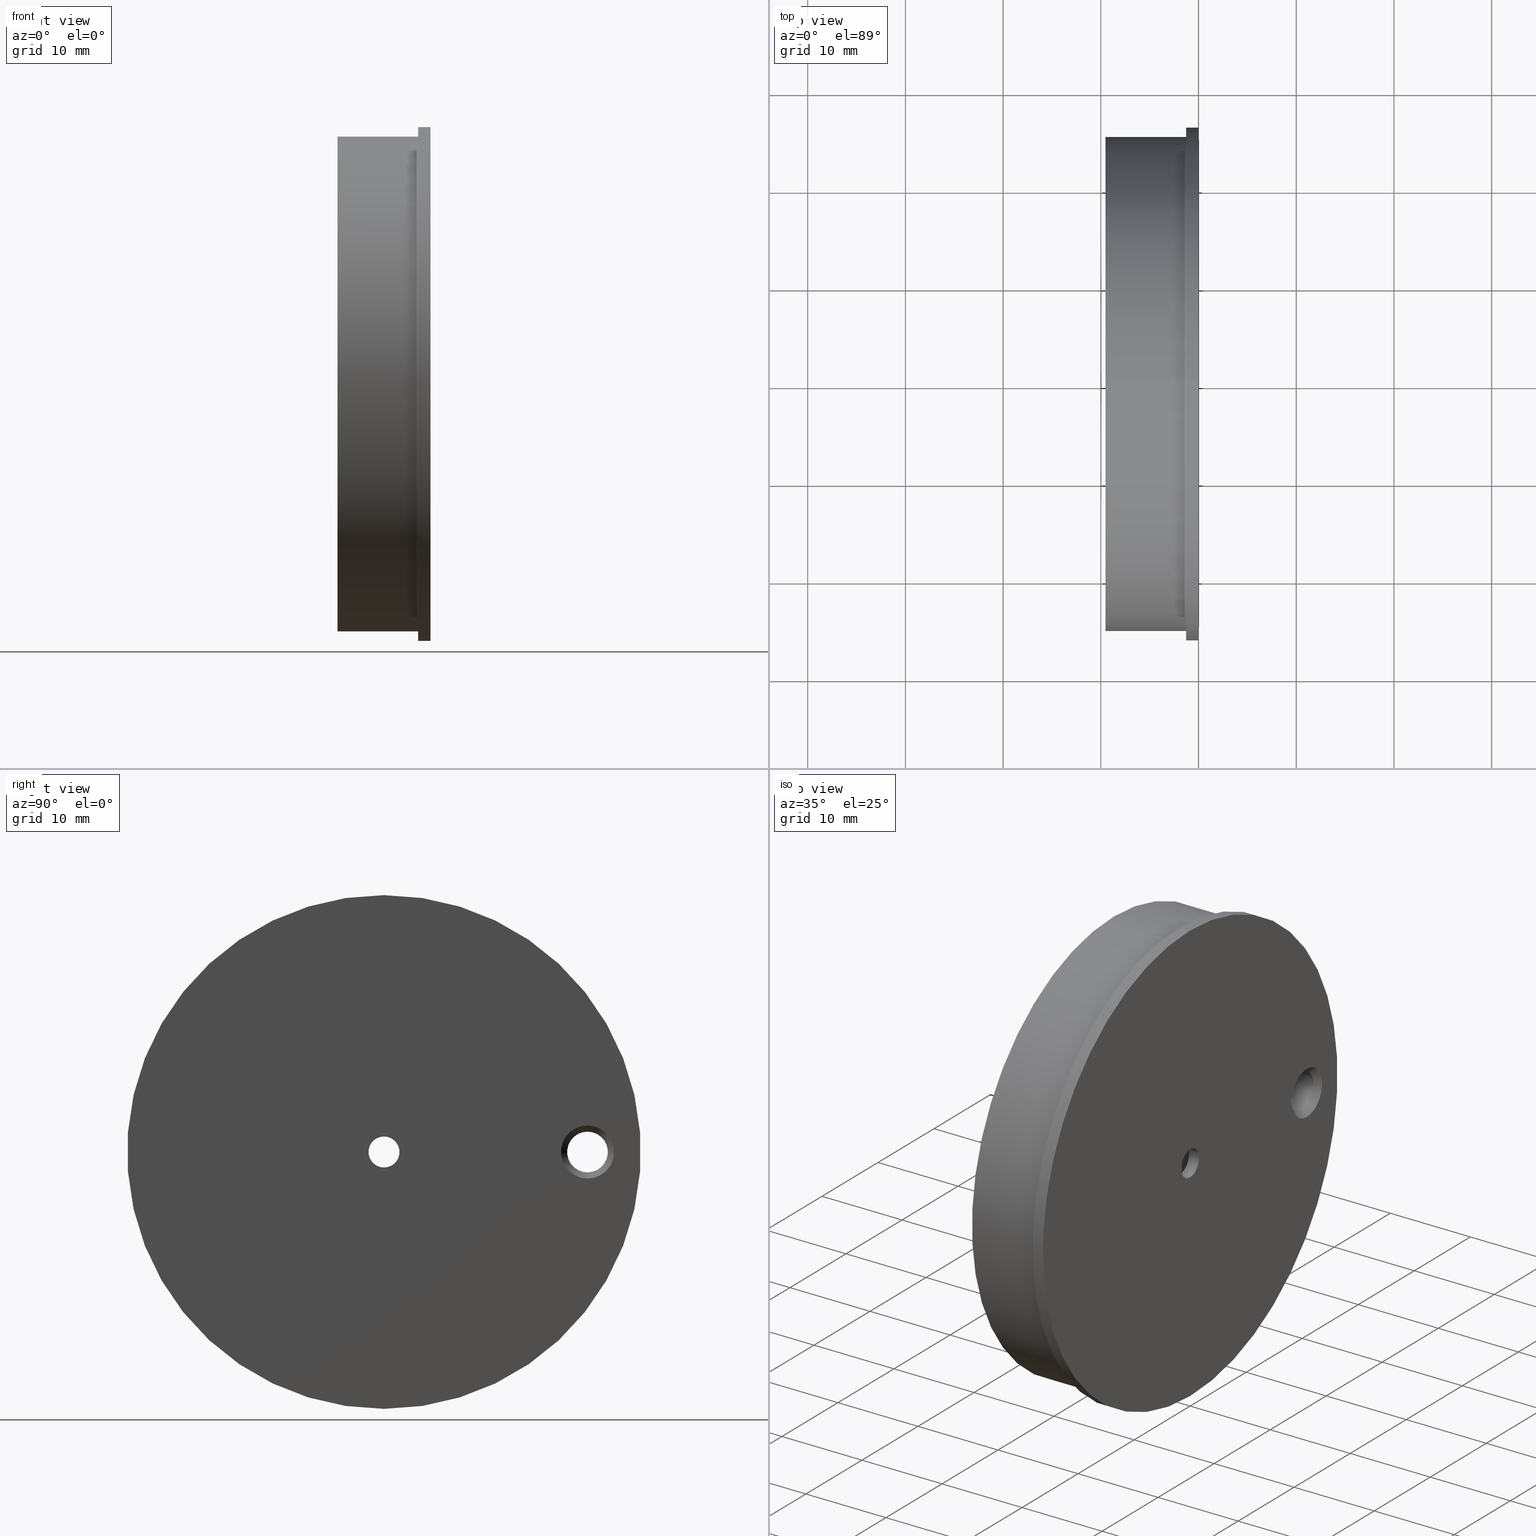
[diagram: canonical four-view strip — front | top / right | iso, engineering-drawing reading convention]
A machine part, canonical four-view strip (front | top / right | iso — engineering-drawing reading convention). The complete STEP part file that produces these views, byte-faithful:
ISO-10303-21;
HEADER;
FILE_DESCRIPTION (( 'STEP AP214' ),
    '1' );
FILE_NAME ('D1300072-v1 aLIGO Pcal Tooling, Periscope Target Disc.STEP',
    '2013-02-11T21:25:10',
    ( 'ligo' ),
    ( 'Microsoft' ),
    'SwSTEP 2.0',
    'SolidWorks 2012',
    '' );
FILE_SCHEMA (( 'AUTOMOTIVE_DESIGN' ));
ENDSEC;

DATA;
#1 = DIRECTION ( 'NONE',  ( 0.0000000000000000000, 0.0000000000000000000, -1.000000000000000000 ) ) ;
#2 = DIRECTION ( 'NONE',  ( 1.000000000000000000, -0.0000000000000000000, -0.0000000000000000000 ) ) ;
#3 =( NAMED_UNIT ( * ) PLANE_ANGLE_UNIT ( ) SI_UNIT ( $, .RADIAN. ) );
#4 = DIRECTION ( 'NONE',  ( 0.0000000000000000000, 0.0000000000000000000, -1.000000000000000000 ) ) ;
#5 = DIRECTION ( 'NONE',  ( 0.0000000000000000000, 1.000000000000000000, -1.224646799147353200E-016 ) ) ;
#6 = DIRECTION ( 'NONE',  ( -1.000000000000000000, -0.0000000000000000000, -0.0000000000000000000 ) ) ;
#7 = DIRECTION ( 'NONE',  ( 0.0000000000000000000, 0.0000000000000000000, -1.000000000000000000 ) ) ;
#8 = CARTESIAN_POINT ( 'NONE',  ( -0.3750000000000001100, 0.0000000000000000000, 0.0000000000000000000 ) ) ;
#9 = DIRECTION ( 'NONE',  ( 0.0000000000000000000, 0.0000000000000000000, -1.000000000000000000 ) ) ;
#10 = CARTESIAN_POINT ( 'NONE',  ( -0.3750000000000001100, 0.0000000000000000000, 0.0000000000000000000 ) ) ;
#11 = DIRECTION ( 'NONE',  ( 0.0000000000000000000, 0.0000000000000000000, 1.000000000000000000 ) ) ;
#12 = CARTESIAN_POINT ( 'NONE',  ( -0.1950000000000000100, 0.0000000000000000000, 0.0000000000000000000 ) ) ;
#13 = DIRECTION ( 'NONE',  ( -1.000000000000000000, -0.0000000000000000000, -0.0000000000000000000 ) ) ;
#14 =( NAMED_UNIT ( * ) PLANE_ANGLE_UNIT ( ) SI_UNIT ( $, .RADIAN. ) );
#15 = DIRECTION ( 'NONE',  ( -1.000000000000000000, -0.0000000000000000000, -0.0000000000000000000 ) ) ;
#16 = DIRECTION ( 'NONE',  ( 0.0000000000000000000, 0.0000000000000000000, -1.000000000000000000 ) ) ;
#17 = CARTESIAN_POINT ( 'NONE',  ( -0.09999999999999997800, 2.449293598294705900E-017, 0.1999999999999999600 ) ) ;
#18 = CARTESIAN_POINT ( 'NONE',  ( -0.09999999999999997800, 0.0000000000000000000, -0.1999999999999999600 ) ) ;
#19 = CARTESIAN_POINT ( 'NONE',  ( 0.0000000000000000000, 1.267509437117510400E-016, 1.034999999999999900 ) ) ;
#20 =( LENGTH_UNIT ( ) NAMED_UNIT ( * ) SI_UNIT ( $, .METRE. ) );
#21 = DIRECTION ( 'NONE',  ( 1.000000000000000000, -0.0000000000000000000, -0.0000000000000000000 ) ) ;
#22 = DIRECTION ( 'NONE',  ( 0.7071067811865475700, 0.0000000000000000000, -0.7071067811865474600 ) ) ;
#23 = DIRECTION ( 'NONE',  ( 0.0000000000000000000, 0.0000000000000000000, -1.000000000000000000 ) ) ;
#24 = CARTESIAN_POINT ( 'NONE',  ( -0.04999999999999988500, 0.0000000000000000000, 0.0000000000000000000 ) ) ;
#25 = CARTESIAN_POINT ( 'NONE',  ( 0.0000000000000000000, 0.0000000000000000000, 0.0000000000000000000 ) ) ;
#26 = CARTESIAN_POINT ( 'NONE',  ( -0.04999999999999996100, 0.0000000000000000000, 0.0000000000000000000 ) ) ;
#27 = CARTESIAN_POINT ( 'NONE',  ( 0.0000000000000000000, 0.0000000000000000000, -0.6770000000000000500 ) ) ;
#28 = CARTESIAN_POINT ( 'NONE',  ( -0.3750000000000001100, 0.8199999999999999500, -0.1069999999999999800 ) ) ;
#29 = DIRECTION ( 'NONE',  ( 0.0000000000000000000, 0.0000000000000000000, -1.000000000000000000 ) ) ;
#30 = CARTESIAN_POINT ( 'NONE',  ( -0.04999999999999996100, 0.0000000000000000000, 0.0000000000000000000 ) ) ;
#31 = CARTESIAN_POINT ( 'NONE',  ( -0.1950000000000000300, 0.0000000000000000000, 0.0000000000000000000 ) ) ;
#32 = DIRECTION ( 'NONE',  ( 1.000000000000000000, -0.0000000000000000000, -0.0000000000000000000 ) ) ;
#33 = CARTESIAN_POINT ( 'NONE',  ( -0.05000000000000006500, 0.0000000000000000000, 0.0000000000000000000 ) ) ;
#34 = CARTESIAN_POINT ( 'NONE',  ( -0.1950000000000000100, 0.0000000000000000000, 0.0000000000000000000 ) ) ;
#35 = CARTESIAN_POINT ( 'NONE',  ( -0.1950000000000000300, 0.0000000000000000000, 0.0000000000000000000 ) ) ;
#36 = DIRECTION ( 'NONE',  ( -0.0000000000000000000, -1.000000000000000000, -0.0000000000000000000 ) ) ;
#37 = DIRECTION ( 'NONE',  ( 0.0000000000000000000, 0.0000000000000000000, -1.000000000000000000 ) ) ;
#38 =( NAMED_UNIT ( * ) PLANE_ANGLE_UNIT ( ) SI_UNIT ( $, .RADIAN. ) );
#39 = DIRECTION ( 'NONE',  ( 0.0000000000000000000, 0.0000000000000000000, -1.000000000000000000 ) ) ;
#40 = DIRECTION ( 'NONE',  ( 0.0000000000000000000, 0.0000000000000000000, -1.000000000000000000 ) ) ;
#41 = DIRECTION ( 'NONE',  ( 0.0000000000000000000, 0.0000000000000000000, 1.000000000000000000 ) ) ;
#42 = CARTESIAN_POINT ( 'NONE',  ( -0.02500000000000007400, 0.8199999999999999500, 0.08199999999999997600 ) ) ;
#43 = CARTESIAN_POINT ( 'NONE',  ( -0.05000000000000006500, 0.0000000000000000000, 0.0000000000000000000 ) ) ;
#44 = CARTESIAN_POINT ( 'NONE',  ( -0.3500000000000000300, 0.8199999999999999500, 0.0000000000000000000 ) ) ;
#45 = DIRECTION ( 'NONE',  ( 0.0000000000000000000, 0.0000000000000000000, -1.000000000000000000 ) ) ;
#46 = DIRECTION ( 'NONE',  ( 1.000000000000000000, -0.0000000000000000000, -0.0000000000000000000 ) ) ;
#47 = CARTESIAN_POINT ( 'NONE',  ( 0.0000000000000000000, 7.654042494670956000E-018, 0.06249999999999997900 ) ) ;
#48 = CARTESIAN_POINT ( 'NONE',  ( -0.3750000000000001100, 0.8199999999999999500, 0.0000000000000000000 ) ) ;
#49 = CARTESIAN_POINT ( 'NONE',  ( 0.0000000000000000000, 0.0000000000000000000, 0.0000000000000000000 ) ) ;
#50 = DIRECTION ( 'NONE',  ( 1.000000000000000000, -0.0000000000000000000, -0.0000000000000000000 ) ) ;
#51 = DIRECTION ( 'NONE',  ( 0.0000000000000000000, 0.0000000000000000000, -1.000000000000000000 ) ) ;
#52 = CARTESIAN_POINT ( 'NONE',  ( 0.0000000000000000000, 0.0000000000000000000, -0.06249999999999997900 ) ) ;
#53 = CARTESIAN_POINT ( 'NONE',  ( -0.02500000000000007400, 0.8199999999999999500, -0.08199999999999997600 ) ) ;
#54 = DIRECTION ( 'NONE',  ( 0.0000000000000000000, 0.0000000000000000000, -1.000000000000000000 ) ) ;
#55 = DIRECTION ( 'NONE',  ( 0.0000000000000000000, 0.0000000000000000000, 1.000000000000000000 ) ) ;
#56 = DIRECTION ( 'NONE',  ( 0.0000000000000000000, 0.0000000000000000000, -1.000000000000000000 ) ) ;
#57 = PLANE ( 'NONE',  #529 ) ;
#58 = DIRECTION ( 'NONE',  ( -1.000000000000000000, -0.0000000000000000000, -0.0000000000000000000 ) ) ;
#59 = DIRECTION ( 'NONE',  ( -1.000000000000000000, -0.0000000000000000000, -0.0000000000000000000 ) ) ;
#60 = CARTESIAN_POINT ( 'NONE',  ( -6.829619984160658000E-017, 0.8199999999999999500, 0.0000000000000000000 ) ) ;
#61 =( LENGTH_UNIT ( ) NAMED_UNIT ( * ) SI_UNIT ( $, .METRE. ) );
#62 = DIRECTION ( 'NONE',  ( 0.0000000000000000000, 0.0000000000000000000, 1.000000000000000000 ) ) ;
#63 = APPLICATION_PROTOCOL_DEFINITION ( 'draft international standard', 'automotive_design', 1998, #130 ) ;
#64 = DIRECTION ( 'NONE',  ( -0.0000000000000000000, -1.000000000000000000, -0.0000000000000000000 ) ) ;
#65 = DIRECTION ( 'NONE',  ( -1.000000000000000000, -0.0000000000000000000, -0.0000000000000000000 ) ) ;
#66 = DIRECTION ( 'NONE',  ( 0.0000000000000000000, 0.0000000000000000000, -1.000000000000000000 ) ) ;
#67 = DIRECTION ( 'NONE',  ( -1.000000000000000000, -0.0000000000000000000, -0.0000000000000000000 ) ) ;
#68 = DIRECTION ( 'NONE',  ( 1.000000000000000000, -0.0000000000000000000, -0.0000000000000000000 ) ) ;
#69 = DIRECTION ( 'NONE',  ( 0.0000000000000000000, 0.0000000000000000000, -1.000000000000000000 ) ) ;
#70 = DIRECTION ( 'NONE',  ( 1.000000000000000000, -0.0000000000000000000, -0.0000000000000000000 ) ) ;
#71 = FILL_AREA_STYLE ('',( #113 ) ) ;
#72 = DIRECTION ( 'NONE',  ( 0.0000000000000000000, 0.0000000000000000000, 1.000000000000000000 ) ) ;
#73 = DIRECTION ( 'NONE',  ( 0.0000000000000000000, 0.0000000000000000000, -1.000000000000000000 ) ) ;
#74 = DIRECTION ( 'NONE',  ( -1.000000000000000000, -0.0000000000000000000, -0.0000000000000000000 ) ) ;
#75 = DIRECTION ( 'NONE',  ( 1.000000000000000000, -0.0000000000000000000, -0.0000000000000000000 ) ) ;
#76 = CARTESIAN_POINT ( 'NONE',  ( -0.09999999999999997800, 0.0000000000000000000, 0.0000000000000000000 ) ) ;
#77 = DIRECTION ( 'NONE',  ( -1.000000000000000000, -0.0000000000000000000, -0.0000000000000000000 ) ) ;
#78 = DIRECTION ( 'NONE',  ( 1.000000000000000000, -0.0000000000000000000, -0.0000000000000000000 ) ) ;
#79 = APPLICATION_PROTOCOL_DEFINITION ( 'draft international standard', 'automotive_design', 1998, #165 ) ;
#80 = DIRECTION ( 'NONE',  ( 1.000000000000000000, -0.0000000000000000000, -0.0000000000000000000 ) ) ;
#81 = CARTESIAN_POINT ( 'NONE',  ( 0.0000000000000000000, 0.0000000000000000000, 0.0000000000000000000 ) ) ;
#82 = DIRECTION ( 'NONE',  ( 1.000000000000000000, -0.0000000000000000000, -0.0000000000000000000 ) ) ;
#83 = DIRECTION ( 'NONE',  ( 0.0000000000000000000, 0.0000000000000000000, -1.000000000000000000 ) ) ;
#84 = DIRECTION ( 'NONE',  ( 0.0000000000000000000, 0.0000000000000000000, -1.000000000000000000 ) ) ;
#85 = SURFACE_STYLE_USAGE ( .BOTH. , #102 ) ;
#86 = DIRECTION ( 'NONE',  ( 0.0000000000000000000, 0.0000000000000000000, 1.000000000000000000 ) ) ;
#87 = DIRECTION ( 'NONE',  ( 1.000000000000000000, -0.0000000000000000000, -0.0000000000000000000 ) ) ;
#88 = CARTESIAN_POINT ( 'NONE',  ( -0.02500000000000007400, 0.8199999999999999500, 0.0000000000000000000 ) ) ;
#89 = CARTESIAN_POINT ( 'NONE',  ( 0.0000000000000000000, 8.290858830227582600E-017, 0.6770000000000000500 ) ) ;
#90 = CARTESIAN_POINT ( 'NONE',  ( -0.3750000000000000600, 0.9970000000000000000, 0.0000000000000000000 ) ) ;
#91 = PRODUCT_CONTEXT ( 'NONE', #130, 'mechanical' ) ;
#92 = DIRECTION ( 'NONE',  ( 1.000000000000000000, -0.0000000000000000000, -0.0000000000000000000 ) ) ;
#93 = SURFACE_STYLE_USAGE ( .BOTH. , #168 ) ;
#94 = DIRECTION ( 'NONE',  ( 0.0000000000000000000, 1.224646799147353500E-016, 1.000000000000000000 ) ) ;
#95 = DIRECTION ( 'NONE',  ( 0.0000000000000000000, 0.0000000000000000000, 1.000000000000000000 ) ) ;
#96 = DIRECTION ( 'NONE',  ( 1.000000000000000000, -0.0000000000000000000, -0.0000000000000000000 ) ) ;
#97 = CARTESIAN_POINT ( 'NONE',  ( 0.0000000000000000000, 0.0000000000000000000, 0.0000000000000000000 ) ) ;
#98 = CARTESIAN_POINT ( 'NONE',  ( -0.3750000000000001100, 0.8199999999999999500, 0.0000000000000000000 ) ) ;
#99 = DIRECTION ( 'NONE',  ( 1.000000000000000000, -0.0000000000000000000, -0.0000000000000000000 ) ) ;
#100 = DIRECTION ( 'NONE',  ( -1.000000000000000000, 0.0000000000000000000, 0.0000000000000000000 ) ) ;
#101 = DIRECTION ( 'NONE',  ( 1.000000000000000000, -0.0000000000000000000, -0.0000000000000000000 ) ) ;
#102 = SURFACE_SIDE_STYLE ('',( #258 ) ) ;
#103 = CARTESIAN_POINT ( 'NONE',  ( -0.02500000000000007400, 0.8199999999999999500, 0.0000000000000000000 ) ) ;
#104 = DIRECTION ( 'NONE',  ( 0.0000000000000000000, 0.0000000000000000000, -1.000000000000000000 ) ) ;
#105 = CARTESIAN_POINT ( 'NONE',  ( -0.3749999999999999400, 0.0000000000000000000, 0.0000000000000000000 ) ) ;
#106 =( NAMED_UNIT ( * ) SI_UNIT ( $, .STERADIAN. ) SOLID_ANGLE_UNIT ( ) );
#107 = DIRECTION ( 'NONE',  ( 0.0000000000000000000, 1.000000000000000000, -1.224646799147353200E-016 ) ) ;
#108 = DIRECTION ( 'NONE',  ( 1.000000000000000000, -0.0000000000000000000, -0.0000000000000000000 ) ) ;
#109 = DIRECTION ( 'NONE',  ( 1.000000000000000000, -0.0000000000000000000, -0.0000000000000000000 ) ) ;
#110 = DIRECTION ( 'NONE',  ( 0.0000000000000000000, 0.0000000000000000000, -1.000000000000000000 ) ) ;
#111 = CARTESIAN_POINT ( 'NONE',  ( 0.0000000000000000000, 0.0000000000000000000, -1.034999999999999900 ) ) ;
#112 = DIRECTION ( 'NONE',  ( 1.000000000000000000, -0.0000000000000000000, -0.0000000000000000000 ) ) ;
#113 = FILL_AREA_STYLE_COLOUR ( '', #212 ) ;
#114 = DIRECTION ( 'NONE',  ( 0.0000000000000000000, 0.0000000000000000000, 1.000000000000000000 ) ) ;
#115 = CARTESIAN_POINT ( 'NONE',  ( 0.0000000000000000000, 0.0000000000000000000, 0.0000000000000000000 ) ) ;
#116 = DIRECTION ( 'NONE',  ( -0.7071067811865484600, 0.0000000000000000000, 0.7071067811865465700 ) ) ;
#117 = CARTESIAN_POINT ( 'NONE',  ( -0.3750000000000000600, 0.8199999999999999500, 0.08199999999999997600 ) ) ;
#118 = DIRECTION ( 'NONE',  ( 0.0000000000000000000, 1.224646799147351700E-016, 1.000000000000000000 ) ) ;
#119 = CARTESIAN_POINT ( 'NONE',  ( -0.3500000000000000300, 0.8199999999999999500, 0.0000000000000000000 ) ) ;
#120 = CARTESIAN_POINT ( 'NONE',  ( -0.2450000000000000200, 7.678535430653906100E-017, 0.6270000000000002200 ) ) ;
#121 = DIRECTION ( 'NONE',  ( 1.000000000000000000, -0.0000000000000000000, -0.0000000000000000000 ) ) ;
#122 = CARTESIAN_POINT ( 'NONE',  ( 0.0000000000000000000, 0.0000000000000000000, -0.2499999999999999700 ) ) ;
#123 = DIRECTION ( 'NONE',  ( 1.000000000000000000, -0.0000000000000000000, -0.0000000000000000000 ) ) ;
#124 = DIRECTION ( 'NONE',  ( 0.0000000000000000000, 0.0000000000000000000, -1.000000000000000000 ) ) ;
#125 = CARTESIAN_POINT ( 'NONE',  ( -0.3749999999999999400, 0.0000000000000000000, 0.0000000000000000000 ) ) ;
#126 = DIRECTION ( 'NONE',  ( 1.000000000000000000, -0.0000000000000000000, -0.0000000000000000000 ) ) ;
#127 = CARTESIAN_POINT ( 'NONE',  ( -0.09999999999999997800, 0.0000000000000000000, 0.0000000000000000000 ) ) ;
#128 = FILL_AREA_STYLE_COLOUR ( '', #246 ) ;
#129 = CARTESIAN_POINT ( 'NONE',  ( -0.05000000000000005800, 0.0000000000000000000, 0.0000000000000000000 ) ) ;
#130 = APPLICATION_CONTEXT ( 'automotive_design' ) ;
#131 = CARTESIAN_POINT ( 'NONE',  ( -0.3750000000000000600, 0.8199999999999999500, -0.08199999999999997600 ) ) ;
#132 = DIRECTION ( 'NONE',  ( 1.000000000000000000, -0.0000000000000000000, -0.0000000000000000000 ) ) ;
#133 = CARTESIAN_POINT ( 'NONE',  ( -0.09999999999999997800, 0.0000000000000000000, 0.0000000000000000000 ) ) ;
#134 = CARTESIAN_POINT ( 'NONE',  ( -0.2450000000000000200, 0.0000000000000000000, 0.0000000000000000000 ) ) ;
#135 = DIRECTION ( 'NONE',  ( 1.000000000000000000, -0.0000000000000000000, -0.0000000000000000000 ) ) ;
#136 = CARTESIAN_POINT ( 'NONE',  ( -6.829619984160658000E-017, 0.8199999999999999500, 0.0000000000000000000 ) ) ;
#137 = CARTESIAN_POINT ( 'NONE',  ( 0.0000000000000000000, 0.0000000000000000000, 0.0000000000000000000 ) ) ;
#138 = CARTESIAN_POINT ( 'NONE',  ( -0.3750000000000001100, 0.8199999999999999500, 0.1069999999999999800 ) ) ;
#139 = DIRECTION ( 'NONE',  ( -0.7071067811865484600, 8.659560562354921800E-017, -0.7071067811865465700 ) ) ;
#140 = DIRECTION ( 'NONE',  ( 0.0000000000000000000, 0.0000000000000000000, 1.000000000000000000 ) ) ;
#141 = DIRECTION ( 'NONE',  ( 1.000000000000000000, -0.0000000000000000000, -0.0000000000000000000 ) ) ;
#142 = CARTESIAN_POINT ( 'NONE',  ( -0.04999999999999988500, 0.0000000000000000000, 0.0000000000000000000 ) ) ;
#143 = DIRECTION ( 'NONE',  ( 1.000000000000000000, -0.0000000000000000000, -0.0000000000000000000 ) ) ;
#144 = DIRECTION ( 'NONE',  ( 1.000000000000000000, -0.0000000000000000000, -0.0000000000000000000 ) ) ;
#145 = CARTESIAN_POINT ( 'NONE',  ( 0.0000000000000000000, 0.0000000000000000000, -0.9970000000000000000 ) ) ;
#146 = DIRECTION ( 'NONE',  ( 0.0000000000000000000, 0.0000000000000000000, -1.000000000000000000 ) ) ;
#147 = DIRECTION ( 'NONE',  ( 1.000000000000000000, -0.0000000000000000000, -0.0000000000000000000 ) ) ;
#148 = CARTESIAN_POINT ( 'NONE',  ( 0.0000000000000000000, 1.220972858749911300E-016, 0.9970000000000000000 ) ) ;
#149 = DIRECTION ( 'NONE',  ( 0.0000000000000000000, 0.0000000000000000000, -1.000000000000000000 ) ) ;
#150 = DIRECTION ( 'NONE',  ( 1.000000000000000000, -0.0000000000000000000, -0.0000000000000000000 ) ) ;
#151 = DIRECTION ( 'NONE',  ( 1.000000000000000000, -0.0000000000000000000, -0.0000000000000000000 ) ) ;
#152 = DIRECTION ( 'NONE',  ( 1.000000000000000000, -0.0000000000000000000, -0.0000000000000000000 ) ) ;
#153 = DIRECTION ( 'NONE',  ( -1.000000000000000000, -0.0000000000000000000, -0.0000000000000000000 ) ) ;
#154 = DIRECTION ( 'NONE',  ( 0.0000000000000000000, 0.0000000000000000000, 1.000000000000000000 ) ) ;
#155 =( CONVERSION_BASED_UNIT ( 'INCH', #450 ) LENGTH_UNIT ( ) NAMED_UNIT ( #488 ) );
#156 = CARTESIAN_POINT ( 'NONE',  ( 0.0000000000000000000, 3.061616997868382400E-017, 0.2499999999999999700 ) ) ;
#157 = CARTESIAN_POINT ( 'NONE',  ( -0.2450000000000000200, 0.0000000000000000000, 0.0000000000000000000 ) ) ;
#158 = DIRECTION ( 'NONE',  ( 0.0000000000000000000, 0.0000000000000000000, -1.000000000000000000 ) ) ;
#159 = CARTESIAN_POINT ( 'NONE',  ( 0.0000000000000000000, 0.0000000000000000000, 0.0000000000000000000 ) ) ;
#160 =( CONVERSION_BASED_UNIT ( 'INCH', #479 ) LENGTH_UNIT ( ) NAMED_UNIT ( #484 ) );
#161 = DIRECTION ( 'NONE',  ( 1.000000000000000000, -0.0000000000000000000, -0.0000000000000000000 ) ) ;
#162 = DIRECTION ( 'NONE',  ( 0.0000000000000000000, 0.0000000000000000000, -1.000000000000000000 ) ) ;
#163 = DIRECTION ( 'NONE',  ( 0.0000000000000000000, 0.0000000000000000000, -1.000000000000000000 ) ) ;
#164 = DIRECTION ( 'NONE',  ( 0.7071067811865475700, 8.659560562354931600E-017, 0.7071067811865474600 ) ) ;
#165 = APPLICATION_CONTEXT ( 'automotive_design' ) ;
#166 =( LENGTH_UNIT ( ) NAMED_UNIT ( * ) SI_UNIT ( $, .METRE. ) );
#167 = DIRECTION ( 'NONE',  ( 1.000000000000000000, 0.0000000000000000000, 0.0000000000000000000 ) ) ;
#168 = SURFACE_SIDE_STYLE ('',( #221 ) ) ;
#169 = DIRECTION ( 'NONE',  ( 1.000000000000000000, -0.0000000000000000000, -0.0000000000000000000 ) ) ;
#170 = DIRECTION ( 'NONE',  ( 1.000000000000000000, -0.0000000000000000000, -0.0000000000000000000 ) ) ;
#171 = DIRECTION ( 'NONE',  ( 0.0000000000000000000, 0.0000000000000000000, -1.000000000000000000 ) ) ;
#172 = CARTESIAN_POINT ( 'NONE',  ( -0.05000000000000005800, 0.0000000000000000000, 0.0000000000000000000 ) ) ;
#173 = FILL_AREA_STYLE ('',( #128 ) ) ;
#174 = DIRECTION ( 'NONE',  ( 1.000000000000000000, -0.0000000000000000000, -0.0000000000000000000 ) ) ;
#175 = DIRECTION ( 'NONE',  ( 0.0000000000000000000, 0.0000000000000000000, -1.000000000000000000 ) ) ;
#176 = DIRECTION ( 'NONE',  ( 1.000000000000000000, -0.0000000000000000000, -0.0000000000000000000 ) ) ;
#177 = DIRECTION ( 'NONE',  ( 1.000000000000000000, -0.0000000000000000000, -0.0000000000000000000 ) ) ;
#178 =( NAMED_UNIT ( * ) SI_UNIT ( $, .STERADIAN. ) SOLID_ANGLE_UNIT ( ) );
#179 = CARTESIAN_POINT ( 'NONE',  ( -0.2450000000000000200, 0.0000000000000000000, -0.6270000000000002200 ) ) ;
#180 =( CONVERSION_BASED_UNIT ( 'INCH', #312 ) LENGTH_UNIT ( ) NAMED_UNIT ( #482 ) );
#181 =( NAMED_UNIT ( * ) SI_UNIT ( $, .STERADIAN. ) SOLID_ANGLE_UNIT ( ) );
#182 = ORIENTED_EDGE ( 'NONE', *, *, #631, .T. ) ;
#183 = CIRCLE ( 'NONE', #550, 1.034999999999999900 ) ;
#184 = LINE ( 'NONE', #111, #476 ) ;
#185 = EDGE_LOOP ( 'NONE', ( #443, #452, #276, #206 ) ) ;
#186 = CIRCLE ( 'NONE', #539, 0.05000000000000001000 ) ;
#187 = FACE_OUTER_BOUND ( 'NONE', #344, .T. ) ;
#188 = VERTEX_POINT ( 'NONE', #689 ) ;
#189 = ORIENTED_EDGE ( 'NONE', *, *, #632, .F. ) ;
#190 = CIRCLE ( 'NONE', #516, 0.08199999999999997600 ) ;
#191 = ORIENTED_EDGE ( 'NONE', *, *, #591, .T. ) ;
#192 = VERTEX_POINT ( 'NONE', #705 ) ;
#193 = CYLINDRICAL_SURFACE ( 'NONE', #612, 1.034999999999999900 ) ;
#194 = CYLINDRICAL_SURFACE ( 'NONE', #615, 0.08199999999999997600 ) ;
#195 = CYLINDRICAL_SURFACE ( 'NONE', #604, 0.2499999999999999700 ) ;
#196 = CYLINDRICAL_SURFACE ( 'NONE', #527, 1.034999999999999900 ) ;
#197 = ORIENTED_EDGE ( 'NONE', *, *, #627, .T. ) ;
#198 = ORIENTED_EDGE ( 'NONE', *, *, #579, .T. ) ;
#199 = CIRCLE ( 'NONE', #552, 0.06249999999999999300 ) ;
#200 = VECTOR ( 'NONE', #70, 39.37007874015748100 ) ;
#201 = ORIENTED_EDGE ( 'NONE', *, *, #635, .F. ) ;
#202 = FACE_OUTER_BOUND ( 'NONE', #384, .T. ) ;
#203 = CIRCLE ( 'NONE', #553, 0.08199999999999997600 ) ;
#204 = ORIENTED_EDGE ( 'NONE', *, *, #629, .F. ) ;
#205 = VERTEX_POINT ( 'NONE', #644 ) ;
#206 = ORIENTED_EDGE ( 'NONE', *, *, #591, .F. ) ;
#207 = EDGE_LOOP ( 'NONE', ( #347, #316 ) ) ;
#208 = ORIENTED_EDGE ( 'NONE', *, *, #575, .T. ) ;
#209 = CYLINDRICAL_SURFACE ( 'NONE', #617, 0.9970000000000000000 ) ;
#210 = CYLINDRICAL_SURFACE ( 'NONE', #622, 0.6770000000000000500 ) ;
#211 = CYLINDRICAL_SURFACE ( 'NONE', #594, 0.9970000000000000000 ) ;
#212 = COLOUR_RGB ( '',0.7529411764705882200, 1.000000000000000000, 0.7529411764705882200 ) ;
#213 = VERTEX_POINT ( 'NONE', #732 ) ;
#214 = VECTOR ( 'NONE', #32, 39.37007874015748100 ) ;
#215 = EDGE_LOOP ( 'NONE', ( #267, #330 ) ) ;
#216 = ORIENTED_EDGE ( 'NONE', *, *, #639, .F. ) ;
#217 = CIRCLE ( 'NONE', #541, 0.06249999999999999300 ) ;
#218 = CIRCLE ( 'NONE', #557, 0.1069999999999999800 ) ;
#219 = ORIENTED_EDGE ( 'NONE', *, *, #599, .F. ) ;
#220 = ORIENTED_EDGE ( 'NONE', *, *, #606, .F. ) ;
#221 = SURFACE_STYLE_FILL_AREA ( #173 ) ;
#222 = VERTEX_POINT ( 'NONE', #673 ) ;
#223 = ORIENTED_EDGE ( 'NONE', *, *, #611, .T. ) ;
#224 = LINE ( 'NONE', #27, #355 ) ;
#225 = ORIENTED_EDGE ( 'NONE', *, *, #583, .T. ) ;
#226 = EDGE_LOOP ( 'NONE', ( #272, #360, #191, #227 ) ) ;
#227 = ORIENTED_EDGE ( 'NONE', *, *, #640, .T. ) ;
#228 = FACE_OUTER_BOUND ( 'NONE', #381, .T. ) ;
#229 = FACE_OUTER_BOUND ( 'NONE', #268, .T. ) ;
#230 = TOROIDAL_SURFACE ( 'NONE', #605, 0.1999999999999999600, 0.05000000000000001000 ) ;
#231 = CIRCLE ( 'NONE', #517, 0.9970000000000000000 ) ;
#232 = FACE_OUTER_BOUND ( 'NONE', #226, .T. ) ;
#233 = FACE_OUTER_BOUND ( 'NONE', #460, .T. ) ;
#234 = VERTEX_POINT ( 'NONE', #706 ) ;
#235 = ORIENTED_EDGE ( 'NONE', *, *, #602, .F. ) ;
#236 = VECTOR ( 'NONE', #22, 39.37007874015748100 ) ;
#237 = ORIENTED_EDGE ( 'NONE', *, *, #601, .F. ) ;
#238 = CIRCLE ( 'NONE', #521, 0.05000000000000001000 ) ;
#239 = VERTEX_POINT ( 'NONE', #727 ) ;
#240 = ORIENTED_EDGE ( 'NONE', *, *, #629, .T. ) ;
#241 = VERTEX_POINT ( 'NONE', #693 ) ;
#242 = CONICAL_SURFACE ( 'NONE', #623, 0.1069999999999999800, 0.7853981633974469500 ) ;
#243 = EDGE_LOOP ( 'NONE', ( #415, #432 ) ) ;
#244 = CIRCLE ( 'NONE', #551, 0.6270000000000002200 ) ;
#245 = CIRCLE ( 'NONE', #540, 0.2499999999999999700 ) ;
#246 = COLOUR_RGB ( '',0.7529411764705882200, 1.000000000000000000, 0.7529411764705882200 ) ;
#247 = LINE ( 'NONE', #52, #273 ) ;
#248 = CIRCLE ( 'NONE', #563, 0.6770000000000000500 ) ;
#249 = PRESENTATION_STYLE_ASSIGNMENT (( #93 ) ) ;
#250 = ORIENTED_EDGE ( 'NONE', *, *, #630, .T. ) ;
#251 = FACE_OUTER_BOUND ( 'NONE', #425, .T. ) ;
#252 = CYLINDRICAL_SURFACE ( 'NONE', #610, 0.2499999999999999700 ) ;
#253 = ORIENTED_EDGE ( 'NONE', *, *, #636, .F. ) ;
#254 = CIRCLE ( 'NONE', #535, 0.2499999999999999700 ) ;
#255 = ORIENTED_EDGE ( 'NONE', *, *, #600, .T. ) ;
#256 = FACE_OUTER_BOUND ( 'NONE', #327, .T. ) ;
#257 = VERTEX_POINT ( 'NONE', #675 ) ;
#258 = SURFACE_STYLE_FILL_AREA ( #71 ) ;
#259 = FACE_BOUND ( 'NONE', #243, .T. ) ;
#260 = FACE_OUTER_BOUND ( 'NONE', #361, .T. ) ;
#261 = ORIENTED_EDGE ( 'NONE', *, *, #631, .F. ) ;
#262 = CIRCLE ( 'NONE', #523, 0.05000000000000001000 ) ;
#263 = VERTEX_POINT ( 'NONE', #648 ) ;
#264 = ORIENTED_EDGE ( 'NONE', *, *, #601, .T. ) ;
#265 = FACE_OUTER_BOUND ( 'NONE', #310, .T. ) ;
#266 = TOROIDAL_SURFACE ( 'NONE', #561, 0.1999999999999999600, 0.05000000000000001000 ) ;
#267 = ORIENTED_EDGE ( 'NONE', *, *, #593, .F. ) ;
#268 = EDGE_LOOP ( 'NONE', ( #201, #264, #470, #385 ) ) ;
#269 = CONICAL_SURFACE ( 'NONE', #616, 0.08199999999999997600, 0.7853981633974482800 ) ;
#270 = ORIENTED_EDGE ( 'NONE', *, *, #574, .F. ) ;
#271 = VECTOR ( 'NONE', #2, 39.37007874015748100 ) ;
#272 = ORIENTED_EDGE ( 'NONE', *, *, #580, .F. ) ;
#273 = VECTOR ( 'NONE', #82, 39.37007874015748100 ) ;
#274 = FACE_BOUND ( 'NONE', #401, .T. ) ;
#275 = ORIENTED_EDGE ( 'NONE', *, *, #640, .F. ) ;
#276 = ORIENTED_EDGE ( 'NONE', *, *, #602, .T. ) ;
#277 = CIRCLE ( 'NONE', #537, 0.6770000000000000500 ) ;
#278 = VERTEX_POINT ( 'NONE', #714 ) ;
#279 = FACE_OUTER_BOUND ( 'NONE', #387, .T. ) ;
#280 = VECTOR ( 'NONE', #67, 39.37007874015748100 ) ;
#281 = ORIENTED_EDGE ( 'NONE', *, *, #576, .F. ) ;
#282 = TOROIDAL_SURFACE ( 'NONE', #598, 0.6270000000000002200, 0.04999999999999996100 ) ;
#283 = EDGE_LOOP ( 'NONE', ( #467, #182 ) ) ;
#284 = FACE_BOUND ( 'NONE', #207, .T. ) ;
#285 = CIRCLE ( 'NONE', #533, 0.6270000000000002200 ) ;
#286 = CIRCLE ( 'NONE', #549, 0.9970000000000000000 ) ;
#287 = FACE_BOUND ( 'NONE', #215, .T. ) ;
#288 = CIRCLE ( 'NONE', #519, 0.1069999999999999800 ) ;
#289 = FACE_OUTER_BOUND ( 'NONE', #350, .T. ) ;
#290 = LINE ( 'NONE', #148, #271 ) ;
#291 = LINE ( 'NONE', #145, #214 ) ;
#292 = ORIENTED_EDGE ( 'NONE', *, *, #624, .T. ) ;
#293 = CYLINDRICAL_SURFACE ( 'NONE', #618, 0.08199999999999997600 ) ;
#294 = VERTEX_POINT ( 'NONE', #669 ) ;
#295 = FACE_OUTER_BOUND ( 'NONE', #433, .T. ) ;
#296 = LINE ( 'NONE', #19, #298 ) ;
#297 = EDGE_LOOP ( 'NONE', ( #235, #439, #394, #313 ) ) ;
#298 = VECTOR ( 'NONE', #143, 39.37007874015748100 ) ;
#299 = ORIENTED_EDGE ( 'NONE', *, *, #577, .T. ) ;
#300 = VERTEX_POINT ( 'NONE', #700 ) ;
#301 = ORIENTED_EDGE ( 'NONE', *, *, #593, .T. ) ;
#302 = EDGE_LOOP ( 'NONE', ( #388, #337 ) ) ;
#303 = ORIENTED_EDGE ( 'NONE', *, *, #587, .T. ) ;
#304 = ORIENTED_EDGE ( 'NONE', *, *, #613, .F. ) ;
#305 = FACE_OUTER_BOUND ( 'NONE', #185, .T. ) ;
#306 = FACE_OUTER_BOUND ( 'NONE', #413, .T. ) ;
#307 = CIRCLE ( 'NONE', #546, 0.06249999999999997900 ) ;
#308 = CIRCLE ( 'NONE', #524, 0.1069999999999999800 ) ;
#309 = ORIENTED_EDGE ( 'NONE', *, *, #630, .F. ) ;
#310 = EDGE_LOOP ( 'NONE', ( #422, #471, #468, #420 ) ) ;
#311 = FACE_OUTER_BOUND ( 'NONE', #297, .T. ) ;
#312 = LENGTH_MEASURE_WITH_UNIT ( LENGTH_MEASURE( 0.02539999999999999900 ), #20 );
#313 = ORIENTED_EDGE ( 'NONE', *, *, #578, .F. ) ;
#314 = LINE ( 'NONE', #53, #236 ) ;
#315 = EDGE_LOOP ( 'NONE', ( #445, #323 ) ) ;
#316 = ORIENTED_EDGE ( 'NONE', *, *, #635, .T. ) ;
#317 = EDGE_LOOP ( 'NONE', ( #304, #442, #357, #408 ) ) ;
#318 = CONICAL_SURFACE ( 'NONE', #564, 0.08199999999999997600, 0.7853981633974482800 ) ;
#319 = FACE_OUTER_BOUND ( 'NONE', #382, .T. ) ;
#320 = FACE_OUTER_BOUND ( 'NONE', #283, .T. ) ;
#321 = LINE ( 'NONE', #122, #389 ) ;
#322 = CYLINDRICAL_SURFACE ( 'NONE', #609, 0.06249999999999997900 ) ;
#323 = ORIENTED_EDGE ( 'NONE', *, *, #634, .F. ) ;
#324 = VERTEX_POINT ( 'NONE', #699 ) ;
#325 = CONICAL_SURFACE ( 'NONE', #597, 0.1069999999999999800, 0.7853981633974469500 ) ;
#326 = VECTOR ( 'NONE', #152, 39.37007874015748100 ) ;
#327 = EDGE_LOOP ( 'NONE', ( #406, #198, #419, #437 ) ) ;
#328 = VECTOR ( 'NONE', #116, 39.37007874015748100 ) ;
#329 = ORIENTED_EDGE ( 'NONE', *, *, #572, .T. ) ;
#330 = ORIENTED_EDGE ( 'NONE', *, *, #626, .F. ) ;
#331 = FACE_OUTER_BOUND ( 'NONE', #416, .T. ) ;
#332 = FACE_OUTER_BOUND ( 'NONE', #340, .T. ) ;
#333 = CIRCLE ( 'NONE', #520, 1.034999999999999900 ) ;
#334 = ORIENTED_EDGE ( 'NONE', *, *, #603, .F. ) ;
#335 = LINE ( 'NONE', #117, #280 ) ;
#336 = ORIENTED_EDGE ( 'NONE', *, *, #608, .T. ) ;
#337 = ORIENTED_EDGE ( 'NONE', *, *, #613, .T. ) ;
#338 = FACE_BOUND ( 'NONE', #315, .T. ) ;
#339 = CIRCLE ( 'NONE', #534, 0.1069999999999999800 ) ;
#340 = EDGE_LOOP ( 'NONE', ( #237, #281, #380, #299 ) ) ;
#341 = VERTEX_POINT ( 'NONE', #687 ) ;
#342 = ORIENTED_EDGE ( 'NONE', *, *, #639, .T. ) ;
#343 = VERTEX_POINT ( 'NONE', #736 ) ;
#344 = EDGE_LOOP ( 'NONE', ( #351, #383 ) ) ;
#345 = LINE ( 'NONE', #42, #376 ) ;
#346 = VERTEX_POINT ( 'NONE', #652 ) ;
#347 = ORIENTED_EDGE ( 'NONE', *, *, #576, .T. ) ;
#348 = EDGE_LOOP ( 'NONE', ( #464, #454, #240, #292 ) ) ;
#349 = CLOSED_SHELL ( 'NONE', ( #502, #491, #504, #490, #487, #498, #483, #493, #495, #505, #494, #503, #507, #501, #492, #481, #497, #508, #500, #499, #506, #489, #496, #486, #485 ) ) ;
#350 = EDGE_LOOP ( 'NONE', ( #270, #434 ) ) ;
#351 = ORIENTED_EDGE ( 'NONE', *, *, #628, .F. ) ;
#352 = EDGE_LOOP ( 'NONE', ( #255, #208 ) ) ;
#353 = CYLINDRICAL_SURFACE ( 'NONE', #621, 0.6770000000000000500 ) ;
#354 = ORIENTED_EDGE ( 'NONE', *, *, #590, .F. ) ;
#355 = VECTOR ( 'NONE', #21, 39.37007874015748100 ) ;
#356 = VECTOR ( 'NONE', #139, 39.37007874015748100 ) ;
#357 = ORIENTED_EDGE ( 'NONE', *, *, #599, .T. ) ;
#358 = ORIENTED_EDGE ( 'NONE', *, *, #625, .F. ) ;
#359 = ORIENTED_EDGE ( 'NONE', *, *, #624, .F. ) ;
#360 = ORIENTED_EDGE ( 'NONE', *, *, #627, .F. ) ;
#361 = EDGE_LOOP ( 'NONE', ( #462, #342, #223, #354 ) ) ;
#362 = ORIENTED_EDGE ( 'NONE', *, *, #628, .T. ) ;
#363 = CIRCLE ( 'NONE', #543, 0.08199999999999997600 ) ;
#364 = ORIENTED_EDGE ( 'NONE', *, *, #584, .T. ) ;
#365 = CIRCLE ( 'NONE', #525, 0.05000000000000001000 ) ;
#366 = CIRCLE ( 'NONE', #569, 0.08199999999999997600 ) ;
#367 = CIRCLE ( 'NONE', #518, 0.2499999999999999700 ) ;
#368 = ORIENTED_EDGE ( 'NONE', *, *, #585, .T. ) ;
#369 = EDGE_LOOP ( 'NONE', ( #362, #430, #472, #469 ) ) ;
#370 = ORIENTED_EDGE ( 'NONE', *, *, #582, .T. ) ;
#371 = CIRCLE ( 'NONE', #556, 1.034999999999999900 ) ;
#372 = VERTEX_POINT ( 'NONE', #666 ) ;
#373 = CIRCLE ( 'NONE', #555, 0.06249999999999997900 ) ;
#374 = CIRCLE ( 'NONE', #554, 0.9970000000000000000 ) ;
#375 = ORIENTED_EDGE ( 'NONE', *, *, #637, .F. ) ;
#376 = VECTOR ( 'NONE', #164, 39.37007874015748100 ) ;
#377 = ORIENTED_EDGE ( 'NONE', *, *, #589, .F. ) ;
#378 = ORIENTED_EDGE ( 'NONE', *, *, #577, .F. ) ;
#379 = CIRCLE ( 'NONE', #560, 0.9970000000000000000 ) ;
#380 = ORIENTED_EDGE ( 'NONE', *, *, #588, .T. ) ;
#381 = EDGE_LOOP ( 'NONE', ( #253, #418, #329, #261 ) ) ;
#382 = EDGE_LOOP ( 'NONE', ( #358, #197, #370, #424 ) ) ;
#383 = ORIENTED_EDGE ( 'NONE', *, *, #620, .F. ) ;
#384 = EDGE_LOOP ( 'NONE', ( #466, #436, #334, #444 ) ) ;
#385 = ORIENTED_EDGE ( 'NONE', *, *, #588, .F. ) ;
#386 = FACE_OUTER_BOUND ( 'NONE', #369, .T. ) ;
#387 = EDGE_LOOP ( 'NONE', ( #216, #378, #440, #405 ) ) ;
#388 = ORIENTED_EDGE ( 'NONE', *, *, #581, .T. ) ;
#389 = VECTOR ( 'NONE', #121, 39.37007874015748100 ) ;
#390 = ORIENTED_EDGE ( 'NONE', *, *, #638, .T. ) ;
#391 = FACE_OUTER_BOUND ( 'NONE', #317, .T. ) ;
#392 = CIRCLE ( 'NONE', #538, 0.6770000000000000500 ) ;
#393 = CYLINDRICAL_SURFACE ( 'NONE', #526, 0.06249999999999997900 ) ;
#394 = ORIENTED_EDGE ( 'NONE', *, *, #634, .T. ) ;
#395 = VERTEX_POINT ( 'NONE', #667 ) ;
#396 = VECTOR ( 'NONE', #112, 39.37007874015748100 ) ;
#397 = VERTEX_POINT ( 'NONE', #698 ) ;
#398 = CIRCLE ( 'NONE', #522, 0.1999999999999999600 ) ;
#399 = VERTEX_POINT ( 'NONE', #677 ) ;
#400 = EDGE_LOOP ( 'NONE', ( #377, #275, #451, #390 ) ) ;
#401 = EDGE_LOOP ( 'NONE', ( #250, #336 ) ) ;
#402 = FACE_BOUND ( 'NONE', #352, .T. ) ;
#403 = VERTEX_POINT ( 'NONE', #646 ) ;
#404 = VERTEX_POINT ( 'NONE', #715 ) ;
#405 = ORIENTED_EDGE ( 'NONE', *, *, #574, .T. ) ;
#406 = ORIENTED_EDGE ( 'NONE', *, *, #608, .F. ) ;
#407 = LINE ( 'NONE', #28, #356 ) ;
#408 = ORIENTED_EDGE ( 'NONE', *, *, #587, .F. ) ;
#409 = LINE ( 'NONE', #156, #396 ) ;
#410 = VERTEX_POINT ( 'NONE', #703 ) ;
#411 = CIRCLE ( 'NONE', #544, 0.6770000000000000500 ) ;
#412 = ORIENTED_EDGE ( 'NONE', *, *, #571, .F. ) ;
#413 = EDGE_LOOP ( 'NONE', ( #219, #441, #428, #204 ) ) ;
#414 = ORIENTED_EDGE ( 'NONE', *, *, #581, .F. ) ;
#415 = ORIENTED_EDGE ( 'NONE', *, *, #573, .T. ) ;
#416 = EDGE_LOOP ( 'NONE', ( #448, #309, #364, #301 ) ) ;
#417 = ORIENTED_EDGE ( 'NONE', *, *, #595, .F. ) ;
#418 = ORIENTED_EDGE ( 'NONE', *, *, #632, .T. ) ;
#419 = ORIENTED_EDGE ( 'NONE', *, *, #626, .T. ) ;
#420 = ORIENTED_EDGE ( 'NONE', *, *, #582, .F. ) ;
#421 = VERTEX_POINT ( 'NONE', #657 ) ;
#422 = ORIENTED_EDGE ( 'NONE', *, *, #641, .T. ) ;
#423 = FACE_OUTER_BOUND ( 'NONE', #435, .T. ) ;
#424 = ORIENTED_EDGE ( 'NONE', *, *, #633, .F. ) ;
#425 = EDGE_LOOP ( 'NONE', ( #220, #414, #303, #225 ) ) ;
#426 = VERTEX_POINT ( 'NONE', #680 ) ;
#427 = VERTEX_POINT ( 'NONE', #708 ) ;
#428 = ORIENTED_EDGE ( 'NONE', *, *, #571, .T. ) ;
#429 = FACE_OUTER_BOUND ( 'NONE', #400, .T. ) ;
#430 = ORIENTED_EDGE ( 'NONE', *, *, #637, .T. ) ;
#431 = FACE_OUTER_BOUND ( 'NONE', #348, .T. ) ;
#432 = ORIENTED_EDGE ( 'NONE', *, *, #633, .T. ) ;
#433 = EDGE_LOOP ( 'NONE', ( #417, #189 ) ) ;
#434 = ORIENTED_EDGE ( 'NONE', *, *, #611, .F. ) ;
#435 = EDGE_LOOP ( 'NONE', ( #375, #447, #368, #456 ) ) ;
#436 = ORIENTED_EDGE ( 'NONE', *, *, #636, .T. ) ;
#437 = ORIENTED_EDGE ( 'NONE', *, *, #584, .F. ) ;
#438 = TOROIDAL_SURFACE ( 'NONE', #596, 0.6270000000000002200, 0.04999999999999996100 ) ;
#439 = ORIENTED_EDGE ( 'NONE', *, *, #589, .T. ) ;
#440 = ORIENTED_EDGE ( 'NONE', *, *, #590, .T. ) ;
#441 = ORIENTED_EDGE ( 'NONE', *, *, #607, .T. ) ;
#442 = ORIENTED_EDGE ( 'NONE', *, *, #606, .T. ) ;
#443 = ORIENTED_EDGE ( 'NONE', *, *, #641, .F. ) ;
#444 = ORIENTED_EDGE ( 'NONE', *, *, #572, .F. ) ;
#445 = ORIENTED_EDGE ( 'NONE', *, *, #638, .F. ) ;
#446 = VERTEX_POINT ( 'NONE', #726 ) ;
#447 = ORIENTED_EDGE ( 'NONE', *, *, #620, .T. ) ;
#448 = ORIENTED_EDGE ( 'NONE', *, *, #579, .F. ) ;
#449 = LINE ( 'NONE', #89, #326 ) ;
#450 = LENGTH_MEASURE_WITH_UNIT ( LENGTH_MEASURE( 0.02539999999999999900 ), #166 );
#451 = ORIENTED_EDGE ( 'NONE', *, *, #578, .T. ) ;
#452 = ORIENTED_EDGE ( 'NONE', *, *, #580, .T. ) ;
#453 = VERTEX_POINT ( 'NONE', #710 ) ;
#454 = ORIENTED_EDGE ( 'NONE', *, *, #583, .F. ) ;
#455 = CIRCLE ( 'NONE', #542, 1.034999999999999900 ) ;
#456 = ORIENTED_EDGE ( 'NONE', *, *, #575, .F. ) ;
#457 = VERTEX_POINT ( 'NONE', #728 ) ;
#458 = VERTEX_POINT ( 'NONE', #730 ) ;
#459 = VERTEX_POINT ( 'NONE', #725 ) ;
#460 = EDGE_LOOP ( 'NONE', ( #359, #412 ) ) ;
#461 = CIRCLE ( 'NONE', #562, 0.1999999999999999600 ) ;
#462 = ORIENTED_EDGE ( 'NONE', *, *, #592, .F. ) ;
#463 = PRESENTATION_STYLE_ASSIGNMENT (( #85 ) ) ;
#464 = ORIENTED_EDGE ( 'NONE', *, *, #607, .F. ) ;
#465 = VECTOR ( 'NONE', #15, 39.37007874015748100 ) ;
#466 = ORIENTED_EDGE ( 'NONE', *, *, #595, .T. ) ;
#467 = ORIENTED_EDGE ( 'NONE', *, *, #603, .T. ) ;
#468 = ORIENTED_EDGE ( 'NONE', *, *, #573, .F. ) ;
#469 = ORIENTED_EDGE ( 'NONE', *, *, #585, .F. ) ;
#470 = ORIENTED_EDGE ( 'NONE', *, *, #592, .T. ) ;
#471 = ORIENTED_EDGE ( 'NONE', *, *, #625, .T. ) ;
#472 = ORIENTED_EDGE ( 'NONE', *, *, #600, .F. ) ;
#473 = FACE_BOUND ( 'NONE', #302, .T. ) ;
#474 = LINE ( 'NONE', #131, #465 ) ;
#475 = LINE ( 'NONE', #47, #200 ) ;
#476 = VECTOR ( 'NONE', #150, 39.37007874015748100 ) ;
#477 = LINE ( 'NONE', #138, #328 ) ;
#478 = CIRCLE ( 'NONE', #536, 0.2499999999999999700 ) ;
#479 = LENGTH_MEASURE_WITH_UNIT ( LENGTH_MEASURE( 0.02539999999999999900 ), #61 );
#480 = SHAPE_DEFINITION_REPRESENTATION ( #514, #509 ) ;
#481 = ADVANCED_FACE ( 'NONE', ( #431 ), #282, .F. ) ;
#482 = DIMENSIONAL_EXPONENTS ( 1.000000000000000000, 0.0000000000000000000, 0.0000000000000000000, 0.0000000000000000000, 0.0000000000000000000, 0.0000000000000000000, 0.0000000000000000000 ) ;
#483 = ADVANCED_FACE ( 'NONE', ( #306 ), #438, .F. ) ;
#484 = DIMENSIONAL_EXPONENTS ( 1.000000000000000000, 0.0000000000000000000, 0.0000000000000000000, 0.0000000000000000000, 0.0000000000000000000, 0.0000000000000000000, 0.0000000000000000000 ) ;
#485 = ADVANCED_FACE ( 'NONE', ( #429 ), #325, .F. ) ;
#486 = ADVANCED_FACE ( 'NONE', ( #232 ), #293, .F. ) ;
#487 = ADVANCED_FACE ( 'NONE', ( #386 ), #209, .T. ) ;
#488 = DIMENSIONAL_EXPONENTS ( 1.000000000000000000, 0.0000000000000000000, 0.0000000000000000000, 0.0000000000000000000, 0.0000000000000000000, 0.0000000000000000000, 0.0000000000000000000 ) ;
#489 = ADVANCED_FACE ( 'NONE', ( #259, #320, #287 ), #662, .T. ) ;
#490 = ADVANCED_FACE ( 'NONE', ( #202 ), #193, .T. ) ;
#491 = ADVANCED_FACE ( 'NONE', ( #305 ), #194, .F. ) ;
#492 = ADVANCED_FACE ( 'NONE', ( #284, #233 ), #681, .T. ) ;
#493 = ADVANCED_FACE ( 'NONE', ( #229 ), #195, .F. ) ;
#494 = ADVANCED_FACE ( 'NONE', ( #331 ), #322, .F. ) ;
#495 = ADVANCED_FACE ( 'NONE', ( #260 ), #230, .F. ) ;
#496 = ADVANCED_FACE ( 'NONE', ( #319 ), #269, .F. ) ;
#497 = ADVANCED_FACE ( 'NONE', ( #251 ), #210, .F. ) ;
#498 = ADVANCED_FACE ( 'NONE', ( #391 ), #353, .F. ) ;
#499 = ADVANCED_FACE ( 'NONE', ( #402, #295 ), #663, .T. ) ;
#500 = ADVANCED_FACE ( 'NONE', ( #423 ), #211, .T. ) ;
#501 = ADVANCED_FACE ( 'NONE', ( #332 ), #252, .F. ) ;
#502 = ADVANCED_FACE ( 'NONE', ( #311 ), #242, .F. ) ;
#503 = ADVANCED_FACE ( 'NONE', ( #274, #289 ), #664, .T. ) ;
#504 = ADVANCED_FACE ( 'NONE', ( #265 ), #318, .F. ) ;
#505 = ADVANCED_FACE ( 'NONE', ( #256 ), #393, .F. ) ;
#506 = ADVANCED_FACE ( 'NONE', ( #228 ), #196, .T. ) ;
#507 = ADVANCED_FACE ( 'NONE', ( #279 ), #266, .F. ) ;
#508 = ADVANCED_FACE ( 'NONE', ( #338, #473, #187 ), #57, .T. ) ;
#509 = ADVANCED_BREP_SHAPE_REPRESENTATION ( 'D1300072-v1 aLIGO Pcal Tooling, Periscope Target Disc', ( #513, #570 ), #558 ) ;
#510 = UNCERTAINTY_MEASURE_WITH_UNIT (LENGTH_MEASURE( 1.000000000000000100E-005 ), #180, 'distance_accuracy_value', 'NONE');
#511 = UNCERTAINTY_MEASURE_WITH_UNIT (LENGTH_MEASURE( 1.000000000000000100E-005 ), #155, 'distance_accuracy_value', 'NONE');
#512 = UNCERTAINTY_MEASURE_WITH_UNIT (LENGTH_MEASURE( 1.000000000000000100E-005 ), #160, 'distance_accuracy_value', 'NONE');
#513 = MANIFOLD_SOLID_BREP ( '#8-32 Tapped Hole1', #349 ) ;
#514 = PRODUCT_DEFINITION_SHAPE ( 'NONE', 'NONE',  #568 ) ;
#515 = PRODUCT_DEFINITION_CONTEXT ( 'detailed design', #165, 'design' ) ;
#516 = AXIS2_PLACEMENT_3D ( 'NONE', #44, #153, #72 ) ;
#517 = AXIS2_PLACEMENT_3D ( 'NONE', #129, #176, #45 ) ;
#518 = AXIS2_PLACEMENT_3D ( 'NONE', #34, #132, #54 ) ;
#519 = AXIS2_PLACEMENT_3D ( 'NONE', #136, #58, #11 ) ;
#520 = AXIS2_PLACEMENT_3D ( 'NONE', #43, #135, #1 ) ;
#521 = AXIS2_PLACEMENT_3D ( 'NONE', #179, #36, #124 ) ;
#522 = AXIS2_PLACEMENT_3D ( 'NONE', #30, #123, #84 ) ;
#523 = AXIS2_PLACEMENT_3D ( 'NONE', #120, #5, #118 ) ;
#524 = AXIS2_PLACEMENT_3D ( 'NONE', #98, #74, #140 ) ;
#525 = AXIS2_PLACEMENT_3D ( 'NONE', #17, #107, #94 ) ;
#526 = AXIS2_PLACEMENT_3D ( 'NONE', #81, #170, #175 ) ;
#527 = AXIS2_PLACEMENT_3D ( 'NONE', #137, #75, #56 ) ;
#528 = STYLED_ITEM ( 'NONE', ( #463 ), #513 ) ;
#529 = AXIS2_PLACEMENT_3D ( 'NONE', #90, #100, #55 ) ;
#530 = PRESENTATION_LAYER_ASSIGNMENT (  '', '', ( #528 ) ) ;
#531 = MECHANICAL_DESIGN_GEOMETRIC_PRESENTATION_REPRESENTATION (  '', ( #528 ), #532 ) ;
#532 =( GEOMETRIC_REPRESENTATION_CONTEXT ( 3 ) GLOBAL_UNCERTAINTY_ASSIGNED_CONTEXT ( ( #512 ) ) GLOBAL_UNIT_ASSIGNED_CONTEXT ( ( #160, #14, #181 ) ) REPRESENTATION_CONTEXT ( 'NONE', 'WORKASPACE' ) );
#533 = AXIS2_PLACEMENT_3D ( 'NONE', #31, #78, #149 ) ;
#534 = AXIS2_PLACEMENT_3D ( 'NONE', #60, #13, #41 ) ;
#535 = AXIS2_PLACEMENT_3D ( 'NONE', #12, #92, #4 ) ;
#536 = AXIS2_PLACEMENT_3D ( 'NONE', #127, #177, #66 ) ;
#537 = AXIS2_PLACEMENT_3D ( 'NONE', #105, #144, #83 ) ;
#538 = AXIS2_PLACEMENT_3D ( 'NONE', #157, #126, #73 ) ;
#539 = AXIS2_PLACEMENT_3D ( 'NONE', #18, #64, #39 ) ;
#540 = AXIS2_PLACEMENT_3D ( 'NONE', #133, #80, #104 ) ;
#541 = AXIS2_PLACEMENT_3D ( 'NONE', #115, #169, #158 ) ;
#542 = AXIS2_PLACEMENT_3D ( 'NONE', #33, #174, #110 ) ;
#543 = AXIS2_PLACEMENT_3D ( 'NONE', #88, #6, #114 ) ;
#544 = AXIS2_PLACEMENT_3D ( 'NONE', #134, #141, #162 ) ;
#545 = STYLED_ITEM ( 'NONE', ( #249 ), #509 ) ;
#546 = AXIS2_PLACEMENT_3D ( 'NONE', #24, #96, #37 ) ;
#547 = PRESENTATION_LAYER_ASSIGNMENT (  '', '', ( #545 ) ) ;
#548 =( GEOMETRIC_REPRESENTATION_CONTEXT ( 3 ) GLOBAL_UNCERTAINTY_ASSIGNED_CONTEXT ( ( #511 ) ) GLOBAL_UNIT_ASSIGNED_CONTEXT ( ( #155, #38, #178 ) ) REPRESENTATION_CONTEXT ( 'NONE', 'WORKASPACE' ) );
#549 = AXIS2_PLACEMENT_3D ( 'NONE', #10, #99, #29 ) ;
#550 = AXIS2_PLACEMENT_3D ( 'NONE', #159, #108, #40 ) ;
#551 = AXIS2_PLACEMENT_3D ( 'NONE', #35, #109, #9 ) ;
#552 = AXIS2_PLACEMENT_3D ( 'NONE', #25, #87, #146 ) ;
#553 = AXIS2_PLACEMENT_3D ( 'NONE', #103, #77, #154 ) ;
#554 = AXIS2_PLACEMENT_3D ( 'NONE', #8, #161, #69 ) ;
#555 = AXIS2_PLACEMENT_3D ( 'NONE', #142, #151, #51 ) ;
#556 = AXIS2_PLACEMENT_3D ( 'NONE', #97, #46, #171 ) ;
#557 = AXIS2_PLACEMENT_3D ( 'NONE', #48, #65, #62 ) ;
#558 =( GEOMETRIC_REPRESENTATION_CONTEXT ( 3 ) GLOBAL_UNCERTAINTY_ASSIGNED_CONTEXT ( ( #510 ) ) GLOBAL_UNIT_ASSIGNED_CONTEXT ( ( #180, #3, #106 ) ) REPRESENTATION_CONTEXT ( 'NONE', 'WORKASPACE' ) );
#559 = MECHANICAL_DESIGN_GEOMETRIC_PRESENTATION_REPRESENTATION (  '', ( #545 ), #548 ) ;
#560 = AXIS2_PLACEMENT_3D ( 'NONE', #172, #147, #7 ) ;
#561 = AXIS2_PLACEMENT_3D ( 'NONE', #76, #50, #23 ) ;
#562 = AXIS2_PLACEMENT_3D ( 'NONE', #26, #68, #16 ) ;
#563 = AXIS2_PLACEMENT_3D ( 'NONE', #125, #101, #163 ) ;
#564 = AXIS2_PLACEMENT_3D ( 'NONE', #734, #713, #672 ) ;
#565 = AXIS2_PLACEMENT_3D ( 'NONE', #654, #707, #653 ) ;
#566 = PRODUCT_RELATED_PRODUCT_CATEGORY ( 'part', '', ( #642 ) ) ;
#567 = PRODUCT_DEFINITION_FORMATION_WITH_SPECIFIED_SOURCE ( 'ANY', '', #642, .NOT_KNOWN. ) ;
#568 = PRODUCT_DEFINITION ( 'UNKNOWN', '', #567, #515 ) ;
#569 = AXIS2_PLACEMENT_3D ( 'NONE', #119, #59, #86 ) ;
#570 = AXIS2_PLACEMENT_3D ( 'NONE', #49, #95, #167 ) ;
#571 = EDGE_CURVE ( 'NONE', #404, #300, #285, .T. ) ;
#572 = EDGE_CURVE ( 'NONE', #410, #346, #184, .T. ) ;
#573 = EDGE_CURVE ( 'NONE', #403, #222, #339, .T. ) ;
#574 = EDGE_CURVE ( 'NONE', #205, #453, #461, .T. ) ;
#575 = EDGE_CURVE ( 'NONE', #459, #257, #379, .T. ) ;
#576 = EDGE_CURVE ( 'NONE', #457, #446, #254, .T. ) ;
#577 = EDGE_CURVE ( 'NONE', #239, #421, #478, .T. ) ;
#578 = EDGE_CURVE ( 'NONE', #213, #426, #477, .T. ) ;
#579 = EDGE_CURVE ( 'NONE', #395, #188, #475, .T. ) ;
#580 = EDGE_CURVE ( 'NONE', #399, #241, #474, .T. ) ;
#581 = EDGE_CURVE ( 'NONE', #397, #278, #277, .T. ) ;
#582 = EDGE_CURVE ( 'NONE', #399, #403, #314, .T. ) ;
#583 = EDGE_CURVE ( 'NONE', #343, #372, #392, .T. ) ;
#584 = EDGE_CURVE ( 'NONE', #192, #294, #247, .T. ) ;
#585 = EDGE_CURVE ( 'NONE', #263, #257, #291, .T. ) ;
#586 = AXIS2_PLACEMENT_3D ( 'NONE', #658, #691, #711 ) ;
#587 = EDGE_CURVE ( 'NONE', #397, #343, #224, .T. ) ;
#588 = EDGE_CURVE ( 'NONE', #457, #239, #321, .T. ) ;
#589 = EDGE_CURVE ( 'NONE', #241, #324, #407, .T. ) ;
#590 = EDGE_CURVE ( 'NONE', #239, #205, #186, .T. ) ;
#591 = EDGE_CURVE ( 'NONE', #341, #213, #335, .T. ) ;
#592 = EDGE_CURVE ( 'NONE', #421, #239, #245, .T. ) ;
#593 = EDGE_CURVE ( 'NONE', #294, #188, #217, .T. ) ;
#594 = AXIS2_PLACEMENT_3D ( 'NONE', #738, #668, #651 ) ;
#595 = EDGE_CURVE ( 'NONE', #410, #234, #455, .T. ) ;
#596 = AXIS2_PLACEMENT_3D ( 'NONE', #671, #678, #701 ) ;
#597 = AXIS2_PLACEMENT_3D ( 'NONE', #650, #692, #724 ) ;
#598 = AXIS2_PLACEMENT_3D ( 'NONE', #645, #665, #694 ) ;
#599 = EDGE_CURVE ( 'NONE', #372, #343, #411, .T. ) ;
#600 = EDGE_CURVE ( 'NONE', #257, #459, #231, .T. ) ;
#601 = EDGE_CURVE ( 'NONE', #446, #421, #409, .T. ) ;
#602 = EDGE_CURVE ( 'NONE', #241, #213, #190, .T. ) ;
#603 = EDGE_CURVE ( 'NONE', #346, #427, #183, .T. ) ;
#604 = AXIS2_PLACEMENT_3D ( 'NONE', #729, #649, #737 ) ;
#605 = AXIS2_PLACEMENT_3D ( 'NONE', #741, #719, #655 ) ;
#606 = EDGE_CURVE ( 'NONE', #278, #372, #449, .T. ) ;
#607 = EDGE_CURVE ( 'NONE', #372, #404, #262, .T. ) ;
#608 = EDGE_CURVE ( 'NONE', #395, #192, #307, .T. ) ;
#609 = AXIS2_PLACEMENT_3D ( 'NONE', #683, #739, #686 ) ;
#610 = AXIS2_PLACEMENT_3D ( 'NONE', #718, #659, #670 ) ;
#611 = EDGE_CURVE ( 'NONE', #453, #205, #398, .T. ) ;
#612 = AXIS2_PLACEMENT_3D ( 'NONE', #717, #709, #688 ) ;
#613 = EDGE_CURVE ( 'NONE', #278, #397, #248, .T. ) ;
#614 = AXIS2_PLACEMENT_3D ( 'NONE', #643, #690, #685 ) ;
#615 = AXIS2_PLACEMENT_3D ( 'NONE', #676, #704, #733 ) ;
#616 = AXIS2_PLACEMENT_3D ( 'NONE', #696, #682, #716 ) ;
#617 = AXIS2_PLACEMENT_3D ( 'NONE', #740, #722, #735 ) ;
#618 = AXIS2_PLACEMENT_3D ( 'NONE', #695, #731, #697 ) ;
#619 = AXIS2_PLACEMENT_3D ( 'NONE', #712, #720, #661 ) ;
#620 = EDGE_CURVE ( 'NONE', #458, #263, #286, .T. ) ;
#621 = AXIS2_PLACEMENT_3D ( 'NONE', #723, #702, #660 ) ;
#622 = AXIS2_PLACEMENT_3D ( 'NONE', #656, #684, #647 ) ;
#623 = AXIS2_PLACEMENT_3D ( 'NONE', #674, #721, #679 ) ;
#624 = EDGE_CURVE ( 'NONE', #300, #404, #244, .T. ) ;
#625 = EDGE_CURVE ( 'NONE', #341, #222, #345, .T. ) ;
#626 = EDGE_CURVE ( 'NONE', #188, #294, #199, .T. ) ;
#627 = EDGE_CURVE ( 'NONE', #341, #399, #203, .T. ) ;
#628 = EDGE_CURVE ( 'NONE', #263, #458, #374, .T. ) ;
#629 = EDGE_CURVE ( 'NONE', #343, #300, #238, .T. ) ;
#630 = EDGE_CURVE ( 'NONE', #192, #395, #373, .T. ) ;
#631 = EDGE_CURVE ( 'NONE', #427, #346, #371, .T. ) ;
#632 = EDGE_CURVE ( 'NONE', #234, #410, #333, .T. ) ;
#633 = EDGE_CURVE ( 'NONE', #222, #403, #288, .T. ) ;
#634 = EDGE_CURVE ( 'NONE', #324, #426, #218, .T. ) ;
#635 = EDGE_CURVE ( 'NONE', #446, #457, #367, .T. ) ;
#636 = EDGE_CURVE ( 'NONE', #234, #427, #296, .T. ) ;
#637 = EDGE_CURVE ( 'NONE', #458, #459, #290, .T. ) ;
#638 = EDGE_CURVE ( 'NONE', #426, #324, #308, .T. ) ;
#639 = EDGE_CURVE ( 'NONE', #421, #453, #365, .T. ) ;
#640 = EDGE_CURVE ( 'NONE', #213, #241, #366, .T. ) ;
#641 = EDGE_CURVE ( 'NONE', #399, #341, #363, .T. ) ;
#642 = PRODUCT ( 'D1300072-v1 aLIGO Pcal Tooling, Periscope Target Disc', 'D1300072-v1 aLIGO Pcal Tooling, Periscope Target Disc', '', ( #91 ) ) ;
#643 = CARTESIAN_POINT ( 'NONE',  ( 0.0000000000000000000, 0.06249999999999999300, 0.0000000000000000000 ) ) ;
#644 = CARTESIAN_POINT ( 'NONE',  ( -0.04999999999999996100, 0.0000000000000000000, -0.1999999999999999600 ) ) ;
#645 = CARTESIAN_POINT ( 'NONE',  ( -0.2450000000000000200, 0.0000000000000000000, 0.0000000000000000000 ) ) ;
#646 = CARTESIAN_POINT ( 'NONE',  ( -6.829619984160658000E-017, 0.8199999999999999500, -0.1069999999999999800 ) ) ;
#647 = DIRECTION ( 'NONE',  ( 0.0000000000000000000, 0.0000000000000000000, -1.000000000000000000 ) ) ;
#648 = CARTESIAN_POINT ( 'NONE',  ( -0.3750000000000001100, 0.0000000000000000000, -0.9970000000000000000 ) ) ;
#649 = DIRECTION ( 'NONE',  ( 1.000000000000000000, -0.0000000000000000000, -0.0000000000000000000 ) ) ;
#650 = CARTESIAN_POINT ( 'NONE',  ( -0.3750000000000001100, 0.8199999999999999500, 0.0000000000000000000 ) ) ;
#651 = DIRECTION ( 'NONE',  ( 0.0000000000000000000, 0.0000000000000000000, -1.000000000000000000 ) ) ;
#652 = CARTESIAN_POINT ( 'NONE',  ( 0.0000000000000000000, 0.0000000000000000000, -1.034999999999999900 ) ) ;
#653 = DIRECTION ( 'NONE',  ( 0.0000000000000000000, 0.0000000000000000000, 1.000000000000000000 ) ) ;
#654 = CARTESIAN_POINT ( 'NONE',  ( -0.04999999999999992600, 0.1999999999999999600, 0.0000000000000000000 ) ) ;
#655 = DIRECTION ( 'NONE',  ( 0.0000000000000000000, 0.0000000000000000000, -1.000000000000000000 ) ) ;
#656 = CARTESIAN_POINT ( 'NONE',  ( 0.0000000000000000000, 0.0000000000000000000, 0.0000000000000000000 ) ) ;
#657 = CARTESIAN_POINT ( 'NONE',  ( -0.09999999999999997800, 3.061616997868382400E-017, 0.2499999999999999700 ) ) ;
#658 = CARTESIAN_POINT ( 'NONE',  ( -0.1950000000000000300, 0.6270000000000002200, 0.0000000000000000000 ) ) ;
#659 = DIRECTION ( 'NONE',  ( 1.000000000000000000, -0.0000000000000000000, -0.0000000000000000000 ) ) ;
#660 = DIRECTION ( 'NONE',  ( 0.0000000000000000000, 0.0000000000000000000, -1.000000000000000000 ) ) ;
#661 = DIRECTION ( 'NONE',  ( 0.0000000000000000000, 0.0000000000000000000, 1.000000000000000000 ) ) ;
#662 = PLANE ( 'NONE',  #614 ) ;
#663 = PLANE ( 'NONE',  #619 ) ;
#664 = PLANE ( 'NONE',  #565 ) ;
#665 = DIRECTION ( 'NONE',  ( 1.000000000000000000, -0.0000000000000000000, -0.0000000000000000000 ) ) ;
#666 = CARTESIAN_POINT ( 'NONE',  ( -0.2450000000000000200, 8.290858830227582600E-017, 0.6770000000000001600 ) ) ;
#667 = CARTESIAN_POINT ( 'NONE',  ( -0.04999999999999988500, 7.654042494670956000E-018, 0.06249999999999997900 ) ) ;
#668 = DIRECTION ( 'NONE',  ( 1.000000000000000000, -0.0000000000000000000, -0.0000000000000000000 ) ) ;
#669 = CARTESIAN_POINT ( 'NONE',  ( 0.0000000000000000000, 0.0000000000000000000, -0.06249999999999999300 ) ) ;
#670 = DIRECTION ( 'NONE',  ( 0.0000000000000000000, 0.0000000000000000000, -1.000000000000000000 ) ) ;
#671 = CARTESIAN_POINT ( 'NONE',  ( -0.2450000000000000200, 0.0000000000000000000, 0.0000000000000000000 ) ) ;
#672 = DIRECTION ( 'NONE',  ( 0.0000000000000000000, 0.0000000000000000000, -1.000000000000000000 ) ) ;
#673 = CARTESIAN_POINT ( 'NONE',  ( -6.829619984160658000E-017, 0.8199999999999999500, 0.1069999999999999800 ) ) ;
#674 = CARTESIAN_POINT ( 'NONE',  ( -0.3750000000000001100, 0.8199999999999999500, 0.0000000000000000000 ) ) ;
#675 = CARTESIAN_POINT ( 'NONE',  ( -0.05000000000000005800, 0.0000000000000000000, -0.9970000000000000000 ) ) ;
#676 = CARTESIAN_POINT ( 'NONE',  ( -0.3750000000000000600, 0.8199999999999999500, 0.0000000000000000000 ) ) ;
#677 = CARTESIAN_POINT ( 'NONE',  ( -0.02500000000000007400, 0.8199999999999999500, -0.08199999999999997600 ) ) ;
#678 = DIRECTION ( 'NONE',  ( 1.000000000000000000, -0.0000000000000000000, -0.0000000000000000000 ) ) ;
#679 = DIRECTION ( 'NONE',  ( 0.0000000000000000000, 0.0000000000000000000, 1.000000000000000000 ) ) ;
#680 = CARTESIAN_POINT ( 'NONE',  ( -0.3750000000000001100, 0.8199999999999999500, 0.1069999999999999800 ) ) ;
#681 = PLANE ( 'NONE',  #586 ) ;
#682 = DIRECTION ( 'NONE',  ( 1.000000000000000000, 0.0000000000000000000, 0.0000000000000000000 ) ) ;
#683 = CARTESIAN_POINT ( 'NONE',  ( 0.0000000000000000000, 0.0000000000000000000, 0.0000000000000000000 ) ) ;
#684 = DIRECTION ( 'NONE',  ( 1.000000000000000000, -0.0000000000000000000, -0.0000000000000000000 ) ) ;
#685 = DIRECTION ( 'NONE',  ( -0.0000000000000000000, 0.0000000000000000000, -1.000000000000000000 ) ) ;
#686 = DIRECTION ( 'NONE',  ( 0.0000000000000000000, 0.0000000000000000000, -1.000000000000000000 ) ) ;
#687 = CARTESIAN_POINT ( 'NONE',  ( -0.02500000000000007400, 0.8199999999999999500, 0.08199999999999997600 ) ) ;
#688 = DIRECTION ( 'NONE',  ( 0.0000000000000000000, 0.0000000000000000000, -1.000000000000000000 ) ) ;
#689 = CARTESIAN_POINT ( 'NONE',  ( 0.0000000000000000000, 7.654042494670957500E-018, 0.06250000000000000000 ) ) ;
#690 = DIRECTION ( 'NONE',  ( 1.000000000000000000, 0.0000000000000000000, -0.0000000000000000000 ) ) ;
#691 = DIRECTION ( 'NONE',  ( -1.000000000000000000, 0.0000000000000000000, 0.0000000000000000000 ) ) ;
#692 = DIRECTION ( 'NONE',  ( -1.000000000000000000, -0.0000000000000000000, -0.0000000000000000000 ) ) ;
#693 = CARTESIAN_POINT ( 'NONE',  ( -0.3500000000000000300, 0.8199999999999999500, -0.08199999999999997600 ) ) ;
#694 = DIRECTION ( 'NONE',  ( 0.0000000000000000000, 0.0000000000000000000, -1.000000000000000000 ) ) ;
#695 = CARTESIAN_POINT ( 'NONE',  ( -0.3750000000000000600, 0.8199999999999999500, 0.0000000000000000000 ) ) ;
#696 = CARTESIAN_POINT ( 'NONE',  ( -0.02500000000000007400, 0.8199999999999999500, 0.0000000000000000000 ) ) ;
#697 = DIRECTION ( 'NONE',  ( 0.0000000000000000000, 0.0000000000000000000, 1.000000000000000000 ) ) ;
#698 = CARTESIAN_POINT ( 'NONE',  ( -0.3749999999999999400, 0.0000000000000000000, -0.6770000000000000500 ) ) ;
#699 = CARTESIAN_POINT ( 'NONE',  ( -0.3750000000000001100, 0.8199999999999999500, -0.1069999999999999800 ) ) ;
#700 = CARTESIAN_POINT ( 'NONE',  ( -0.1950000000000000300, 0.0000000000000000000, -0.6270000000000002200 ) ) ;
#701 = DIRECTION ( 'NONE',  ( 0.0000000000000000000, 0.0000000000000000000, -1.000000000000000000 ) ) ;
#702 = DIRECTION ( 'NONE',  ( 1.000000000000000000, -0.0000000000000000000, -0.0000000000000000000 ) ) ;
#703 = CARTESIAN_POINT ( 'NONE',  ( -0.05000000000000006500, 0.0000000000000000000, -1.034999999999999900 ) ) ;
#704 = DIRECTION ( 'NONE',  ( -1.000000000000000000, -0.0000000000000000000, -0.0000000000000000000 ) ) ;
#705 = CARTESIAN_POINT ( 'NONE',  ( -0.04999999999999988500, 0.0000000000000000000, -0.06249999999999997900 ) ) ;
#706 = CARTESIAN_POINT ( 'NONE',  ( -0.05000000000000006500, 1.267509437117510400E-016, 1.034999999999999900 ) ) ;
#707 = DIRECTION ( 'NONE',  ( -1.000000000000000000, 0.0000000000000000000, 0.0000000000000000000 ) ) ;
#708 = CARTESIAN_POINT ( 'NONE',  ( 0.0000000000000000000, 1.267509437117510400E-016, 1.034999999999999900 ) ) ;
#709 = DIRECTION ( 'NONE',  ( 1.000000000000000000, -0.0000000000000000000, -0.0000000000000000000 ) ) ;
#710 = CARTESIAN_POINT ( 'NONE',  ( -0.04999999999999996100, 2.755455298081544200E-017, 0.1999999999999999600 ) ) ;
#711 = DIRECTION ( 'NONE',  ( 0.0000000000000000000, 0.0000000000000000000, 1.000000000000000000 ) ) ;
#712 = CARTESIAN_POINT ( 'NONE',  ( -0.05000000000000006500, 1.034999999999999900, 0.0000000000000000000 ) ) ;
#713 = DIRECTION ( 'NONE',  ( 1.000000000000000000, 0.0000000000000000000, 0.0000000000000000000 ) ) ;
#714 = CARTESIAN_POINT ( 'NONE',  ( -0.3749999999999999400, 8.290858830227582600E-017, 0.6770000000000000500 ) ) ;
#715 = CARTESIAN_POINT ( 'NONE',  ( -0.1950000000000000300, 7.984697130440743700E-017, 0.6270000000000002200 ) ) ;
#716 = DIRECTION ( 'NONE',  ( 0.0000000000000000000, 0.0000000000000000000, -1.000000000000000000 ) ) ;
#717 = CARTESIAN_POINT ( 'NONE',  ( 0.0000000000000000000, 0.0000000000000000000, 0.0000000000000000000 ) ) ;
#718 = CARTESIAN_POINT ( 'NONE',  ( 0.0000000000000000000, 0.0000000000000000000, 0.0000000000000000000 ) ) ;
#719 = DIRECTION ( 'NONE',  ( 1.000000000000000000, -0.0000000000000000000, -0.0000000000000000000 ) ) ;
#720 = DIRECTION ( 'NONE',  ( -1.000000000000000000, 0.0000000000000000000, 0.0000000000000000000 ) ) ;
#721 = DIRECTION ( 'NONE',  ( -1.000000000000000000, -0.0000000000000000000, -0.0000000000000000000 ) ) ;
#722 = DIRECTION ( 'NONE',  ( 1.000000000000000000, -0.0000000000000000000, -0.0000000000000000000 ) ) ;
#723 = CARTESIAN_POINT ( 'NONE',  ( 0.0000000000000000000, 0.0000000000000000000, 0.0000000000000000000 ) ) ;
#724 = DIRECTION ( 'NONE',  ( 0.0000000000000000000, 0.0000000000000000000, 1.000000000000000000 ) ) ;
#725 = CARTESIAN_POINT ( 'NONE',  ( -0.05000000000000005800, 1.220972858749911300E-016, 0.9970000000000000000 ) ) ;
#726 = CARTESIAN_POINT ( 'NONE',  ( -0.1950000000000000100, 3.061616997868382400E-017, 0.2499999999999999700 ) ) ;
#727 = CARTESIAN_POINT ( 'NONE',  ( -0.09999999999999997800, 0.0000000000000000000, -0.2499999999999999700 ) ) ;
#728 = CARTESIAN_POINT ( 'NONE',  ( -0.1950000000000000100, 0.0000000000000000000, -0.2499999999999999700 ) ) ;
#729 = CARTESIAN_POINT ( 'NONE',  ( 0.0000000000000000000, 0.0000000000000000000, 0.0000000000000000000 ) ) ;
#730 = CARTESIAN_POINT ( 'NONE',  ( -0.3750000000000001100, 1.220972858749911300E-016, 0.9970000000000000000 ) ) ;
#731 = DIRECTION ( 'NONE',  ( -1.000000000000000000, -0.0000000000000000000, -0.0000000000000000000 ) ) ;
#732 = CARTESIAN_POINT ( 'NONE',  ( -0.3500000000000000300, 0.8199999999999999500, 0.08199999999999997600 ) ) ;
#733 = DIRECTION ( 'NONE',  ( 0.0000000000000000000, 0.0000000000000000000, 1.000000000000000000 ) ) ;
#734 = CARTESIAN_POINT ( 'NONE',  ( -0.02500000000000007400, 0.8199999999999999500, 0.0000000000000000000 ) ) ;
#735 = DIRECTION ( 'NONE',  ( 0.0000000000000000000, 0.0000000000000000000, -1.000000000000000000 ) ) ;
#736 = CARTESIAN_POINT ( 'NONE',  ( -0.2450000000000000200, 0.0000000000000000000, -0.6770000000000001600 ) ) ;
#737 = DIRECTION ( 'NONE',  ( 0.0000000000000000000, 0.0000000000000000000, -1.000000000000000000 ) ) ;
#738 = CARTESIAN_POINT ( 'NONE',  ( 0.0000000000000000000, 0.0000000000000000000, 0.0000000000000000000 ) ) ;
#739 = DIRECTION ( 'NONE',  ( 1.000000000000000000, -0.0000000000000000000, -0.0000000000000000000 ) ) ;
#740 = CARTESIAN_POINT ( 'NONE',  ( 0.0000000000000000000, 0.0000000000000000000, 0.0000000000000000000 ) ) ;
#741 = CARTESIAN_POINT ( 'NONE',  ( -0.09999999999999997800, 0.0000000000000000000, 0.0000000000000000000 ) ) ;
ENDSEC;
END-ISO-10303-21;
